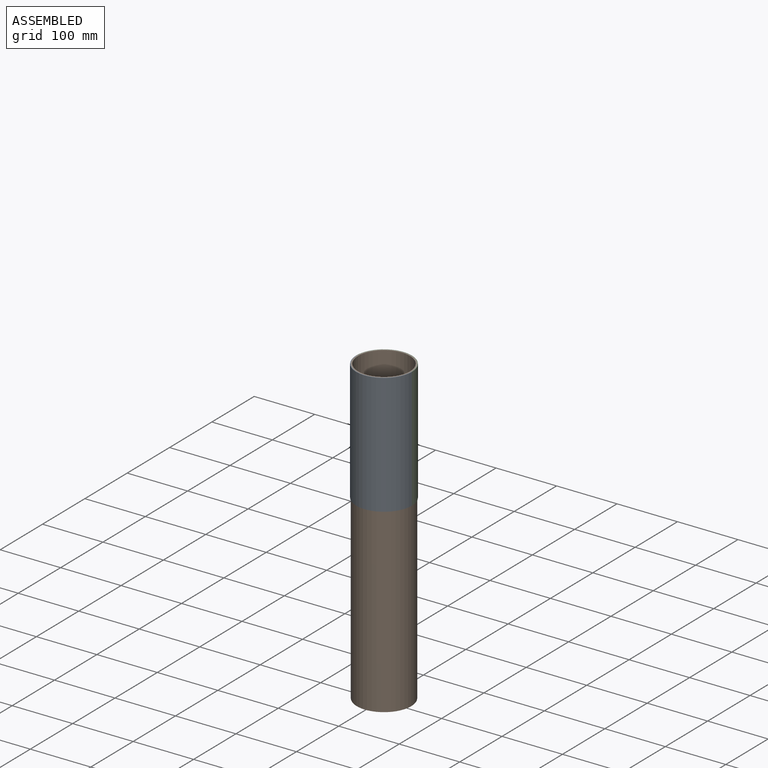
[diagram: assembled view]
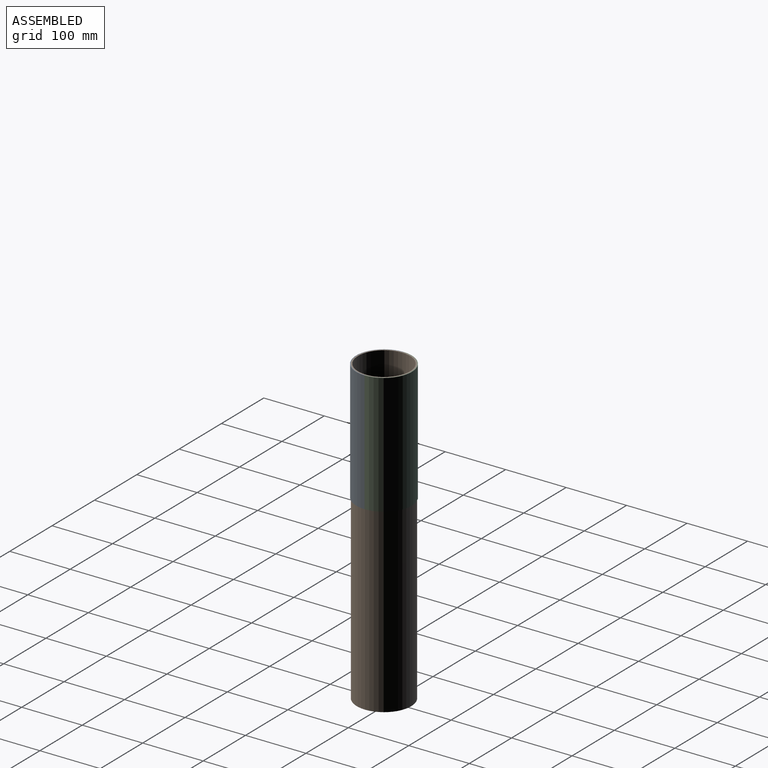
[diagram: assembled view, second angle]
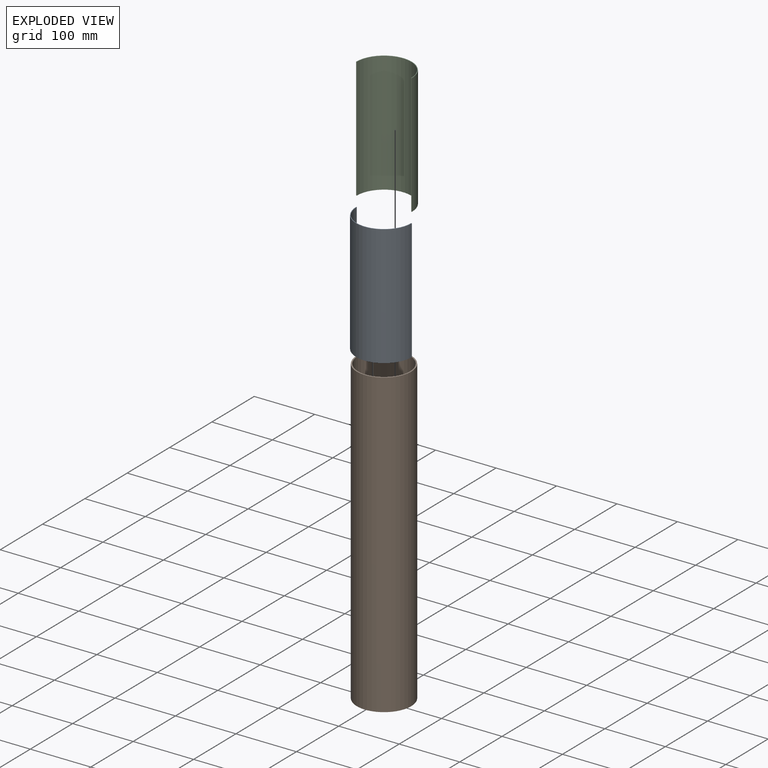
[diagram: exploded view]
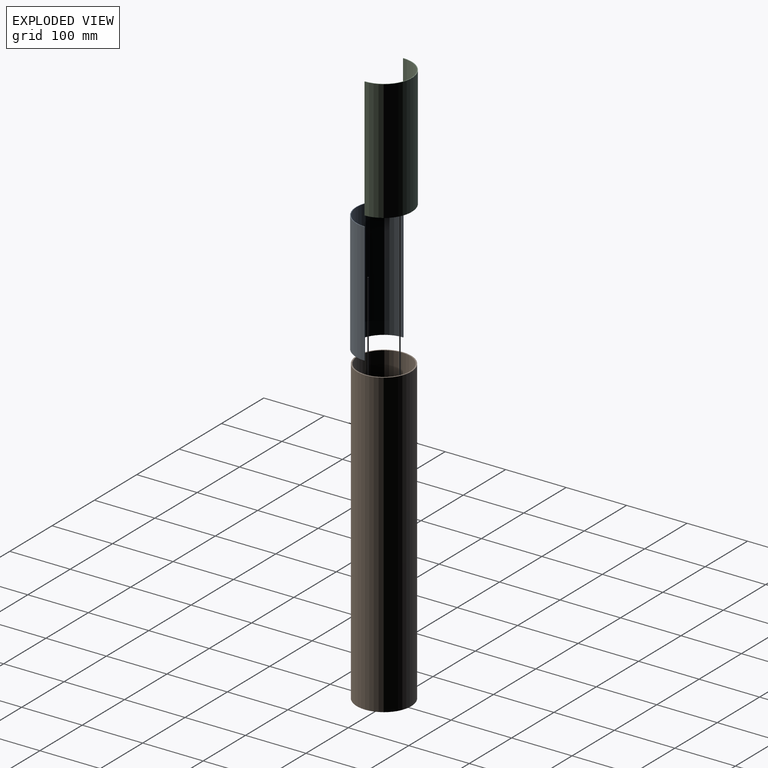
[diagram: exploded view, second angle]
ASSEMBLY  parts=3 mates=2
PART A: 6 faces, bbox 92x200x46 mm
  f0: cylinder r=46mm len=200mm, axis (0,1,0), area 28902.7mm2, adj f2,f3,f4,f5
  f1: cylinder r=45mm len=200mm, axis (0,1,0), area 28274.3mm2, adj f2,f3,f4,f5
  f2: plane 92x46mm, normal (0,-1,0), area 142.9mm2, adj f0,f1,f4,f5
  f3: plane 92x46mm, normal (0,1,0), area 142.9mm2, adj f0,f1,f4,f5
  f4: plane 200x1mm, normal (0,0,1), area 200mm2, adj f0,f1,f2,f3
  f5: plane 200x1mm, normal (0,0,1), area 200mm2, adj f0,f1,f2,f3
PART B: 4 faces, bbox 90x90x500 mm
  f0: cylinder r=43mm len=500mm, axis (0,0,-1), area 135088.5mm2, adj f2,f3
  f1: cylinder r=45mm len=500mm, axis (0,0,-1), area 141371.7mm2, adj f2,f3
  f2: plane 90x90mm, normal (0,0,-1), area 552.9mm2, adj f0,f1
  f3: plane 90x90mm, normal (0,0,1), area 552.9mm2, adj f0,f1
PART C: 6 faces, bbox 92x200x46 mm
  f0: plane 92x46mm, normal (0,1,0), area 142.9mm2, adj f2,f3,f4,f5
  f1: plane 92x46mm, normal (0,-1,0), area 142.9mm2, adj f2,f3,f4,f5
  f2: cylinder r=45mm len=200mm, axis (0,1,0), area 28274.3mm2, adj f0,f1,f4,f5
  f3: cylinder r=46mm len=200mm, axis (0,1,0), area 28902.7mm2, adj f0,f1,f4,f5
  f4: plane 200x1mm, normal (0,0,-1), area 200mm2, adj f0,f1,f2,f3
  f5: plane 200x1mm, normal (0,0,-1), area 200mm2, adj f0,f1,f2,f3
PLACE A rot(axis=(-1,0,0),90deg) t=(8.39,-5.06,35.15)mm
PLACE B t=(8.39,-5.06,-264.85)mm
PLACE C rot(axis=(-1,0,0),90deg) t=(8.39,-5.06,35.15)mm
MATE fastened C.f2 <-> B.f0  axis (0,0,1) through (8.39,-5.06,235.15)mm
MATE fastened A.f1 <-> B.f0  axis (0,0,1) through (8.39,-5.06,235.15)mm
